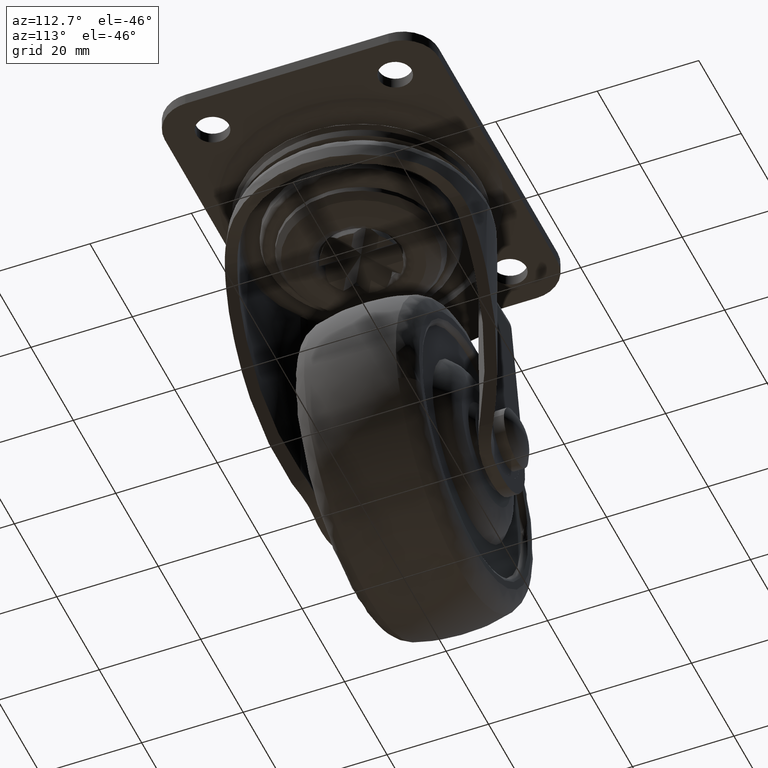
[diagram: clean part render]
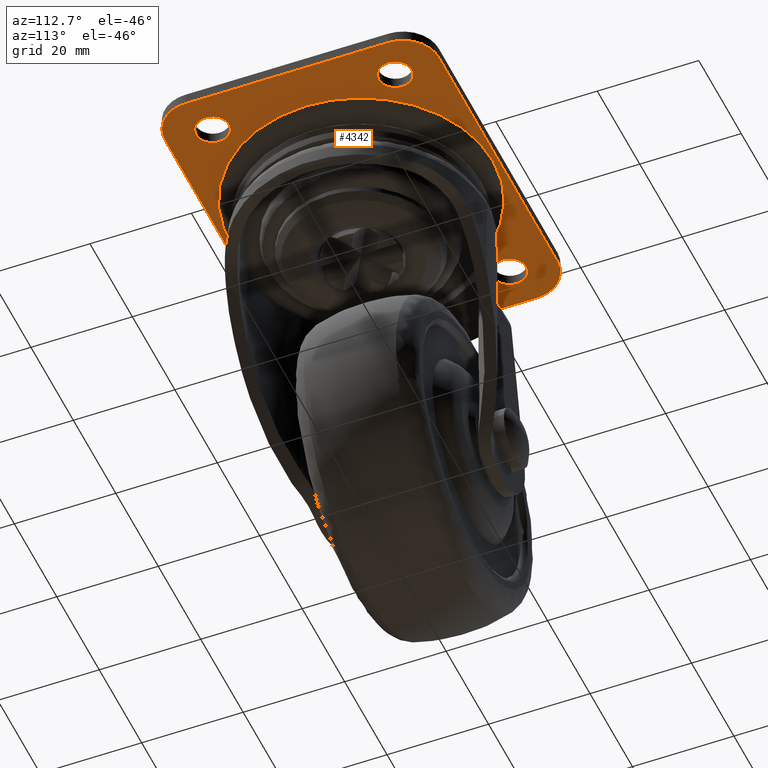
[diagram: same view with one face highlighted and labeled with its STEP entity id]
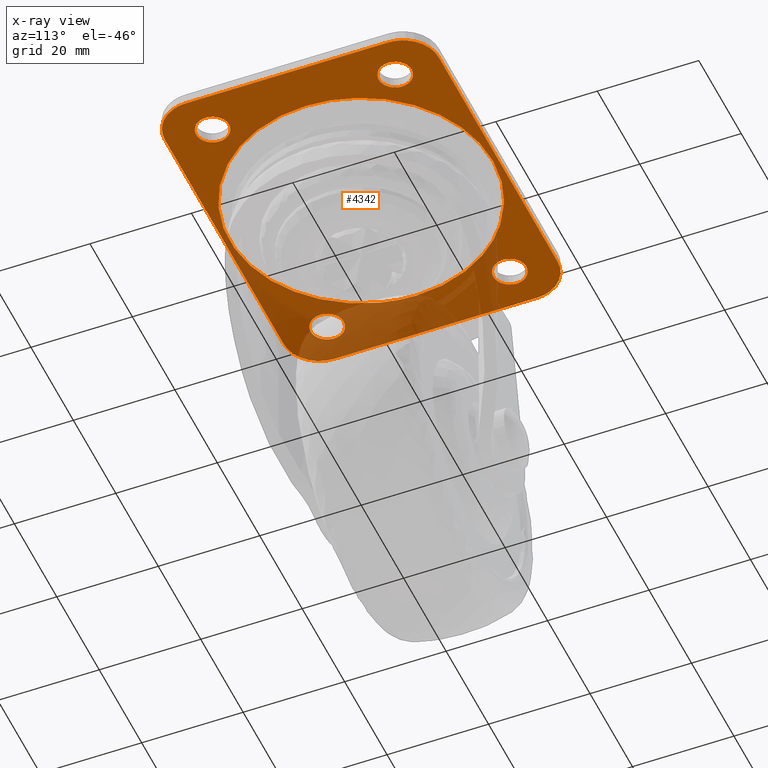
[diagram: x-ray of the same camera — body ghosted, the highlighted face saturated]
A machine part, auxiliary view. The second image highlights one B-rep face of the part: STEP entity #4342.
The next image is the same camera in x-ray: the body ghosted, the highlighted face saturated — about 33% of this face is hidden behind the body in this view.
In plain terms, the highlighted face is a freeform B-spline surface patch.
Its self-contained STEP definition (entity closure, byte-faithful):
#2541=CARTESIAN_POINT('',(-26.801592246465201,21.243938094868220,-2.300282999999960));
#2542=VERTEX_POINT('',#2541);
#2548=CARTESIAN_POINT('',(-23.750000000000000,18.0,-2.300282999999960));
#2549=VERTEX_POINT('',#2548);
#2550=CARTESIAN_POINT('',(-23.750000000000000,18.0,-2.300282999999960));
#2551=CARTESIAN_POINT('',(-23.750000000000000,21.057294717355663,-2.300282999999960));
#2552=CARTESIAN_POINT('',(-26.801592246465194,21.243938094868223,-2.300282999999960));
#2560=(BOUNDED_CURVE()B_SPLINE_CURVE(2,(#2550,#2551,#2552),.UNSPECIFIED.,.F.,.U.)B_SPLINE_CURVE_WITH_KNOTS((3,3),(0.500000000000000,0.739332962237020),.UNSPECIFIED.)CURVE()GEOMETRIC_REPRESENTATION_ITEM()RATIONAL_B_SPLINE_CURVE((1.0,0.719603993288963,0.976072041662597))REPRESENTATION_ITEM(''));
#2561=EDGE_CURVE('',#2549,#2542,#2560,.T.);
#2563=CARTESIAN_POINT('',(-27.383605848415790,14.772718395765340,-2.300282999999960));
#2564=VERTEX_POINT('',#2563);
#2565=CARTESIAN_POINT('',(-27.383605848415790,14.772718395765335,-2.300282999999961));
#2566=CARTESIAN_POINT('',(-27.192475653140839,14.749999999999998,-2.300282999999960));
#2567=CARTESIAN_POINT('',(-27.0,14.750000000000000,-2.300282999999960));
#2568=CARTESIAN_POINT('',(-23.749999999999996,14.749999999999993,-2.300282999999960));
#2569=CARTESIAN_POINT('',(-23.750000000000000,18.0,-2.300282999999960));
#2577=(BOUNDED_CURVE()B_SPLINE_CURVE(2,(#2565,#2566,#2567,#2568,#2569),.UNSPECIFIED.,.F.,.U.)B_SPLINE_CURVE_WITH_KNOTS((3,2,3),(0.229562757042442,0.250000000000000,0.500000000000000),.UNSPECIFIED.)CURVE()GEOMETRIC_REPRESENTATION_ITEM()RATIONAL_B_SPLINE_CURVE((0.956027309912766,0.976056280505953,1.0,0.707106781186547,1.0))REPRESENTATION_ITEM(''));
#2578=EDGE_CURVE('',#2564,#2549,#2577,.T.);
#2626=CARTESIAN_POINT('',(-30.250000000000000,18.0,-2.300282999999960));
#2627=VERTEX_POINT('',#2626);
#2628=CARTESIAN_POINT('',(-30.250000000000000,18.0,-2.300282999999960));
#2629=CARTESIAN_POINT('',(-30.249999999999996,15.113427913941512,-2.300282999999960));
#2630=CARTESIAN_POINT('',(-27.383605848415790,14.772718395765335,-2.300282999999961));
#2638=(BOUNDED_CURVE()B_SPLINE_CURVE(2,(#2628,#2629,#2630),.UNSPECIFIED.,.F.,.U.)B_SPLINE_CURVE_WITH_KNOTS((3,3),(0.0,0.229562757042442),.UNSPECIFIED.)CURVE()GEOMETRIC_REPRESENTATION_ITEM()RATIONAL_B_SPLINE_CURVE((1.0,0.731050500680594,0.956027309912766))REPRESENTATION_ITEM(''));
#2639=EDGE_CURVE('',#2627,#2564,#2638,.T.);
#2641=CARTESIAN_POINT('',(-26.801592246465201,21.243938094868220,-2.300282999999960));
#2642=CARTESIAN_POINT('',(-26.900703519232941,21.249999999999993,-2.300282999999959));
#2643=CARTESIAN_POINT('',(-27.0,21.250000000000000,-2.300282999999960));
#2644=CARTESIAN_POINT('',(-30.250000000000000,21.249999999999996,-2.300282999999960));
#2645=CARTESIAN_POINT('',(-30.250000000000000,18.0,-2.300282999999960));
#2653=(BOUNDED_CURVE()B_SPLINE_CURVE(2,(#2641,#2642,#2643,#2644,#2645),.UNSPECIFIED.,.F.,.U.)B_SPLINE_CURVE_WITH_KNOTS((3,2,3),(0.739332962237020,0.750000000000000,1.0),.UNSPECIFIED.)CURVE()GEOMETRIC_REPRESENTATION_ITEM()RATIONAL_B_SPLINE_CURVE((0.976072041662596,0.987502787897584,1.0,0.707106781186547,1.0))REPRESENTATION_ITEM(''));
#2654=EDGE_CURVE('',#2542,#2627,#2653,.T.);
#2731=CARTESIAN_POINT('',(-26.801592246465201,-14.756061905131780,-2.300282999999960));
#2732=VERTEX_POINT('',#2731);
#2738=CARTESIAN_POINT('',(-23.750000000000000,-18.0,-2.300282999999960));
#2739=VERTEX_POINT('',#2738);
#2740=CARTESIAN_POINT('',(-23.750000000000000,-18.0,-2.300282999999960));
#2741=CARTESIAN_POINT('',(-23.750000000000000,-14.942705282644328,-2.300282999999960));
#2742=CARTESIAN_POINT('',(-26.801592246465194,-14.756061905131780,-2.300282999999960));
#2750=(BOUNDED_CURVE()B_SPLINE_CURVE(2,(#2740,#2741,#2742),.UNSPECIFIED.,.F.,.U.)B_SPLINE_CURVE_WITH_KNOTS((3,3),(0.500000000000000,0.739332962237020),.UNSPECIFIED.)CURVE()GEOMETRIC_REPRESENTATION_ITEM()RATIONAL_B_SPLINE_CURVE((1.0,0.719603993288963,0.976072041662597))REPRESENTATION_ITEM(''));
#2751=EDGE_CURVE('',#2739,#2732,#2750,.T.);
#2753=CARTESIAN_POINT('',(-27.383605848415790,-21.227281604234658,-2.300282999999960));
#2754=VERTEX_POINT('',#2753);
#2755=CARTESIAN_POINT('',(-27.383605848415794,-21.227281604234662,-2.300282999999960));
#2756=CARTESIAN_POINT('',(-27.192475653140839,-21.249999999999993,-2.300282999999959));
#2757=CARTESIAN_POINT('',(-27.0,-21.250000000000000,-2.300282999999960));
#2758=CARTESIAN_POINT('',(-23.749999999999996,-21.249999999999996,-2.300282999999960));
#2759=CARTESIAN_POINT('',(-23.750000000000000,-18.0,-2.300282999999960));
#2767=(BOUNDED_CURVE()B_SPLINE_CURVE(2,(#2755,#2756,#2757,#2758,#2759),.UNSPECIFIED.,.F.,.U.)B_SPLINE_CURVE_WITH_KNOTS((3,2,3),(0.229562757042442,0.250000000000000,0.500000000000000),.UNSPECIFIED.)CURVE()GEOMETRIC_REPRESENTATION_ITEM()RATIONAL_B_SPLINE_CURVE((0.956027309912766,0.976056280505953,1.0,0.707106781186547,1.0))REPRESENTATION_ITEM(''));
#2768=EDGE_CURVE('',#2754,#2739,#2767,.T.);
#2816=CARTESIAN_POINT('',(-30.250000000000000,-18.0,-2.300282999999960));
#2817=VERTEX_POINT('',#2816);
#2818=CARTESIAN_POINT('',(-30.250000000000000,-18.0,-2.300282999999960));
#2819=CARTESIAN_POINT('',(-30.249999999999996,-20.886572086058479,-2.300282999999960));
#2820=CARTESIAN_POINT('',(-27.383605848415790,-21.227281604234658,-2.300282999999961));
#2828=(BOUNDED_CURVE()B_SPLINE_CURVE(2,(#2818,#2819,#2820),.UNSPECIFIED.,.F.,.U.)B_SPLINE_CURVE_WITH_KNOTS((3,3),(0.0,0.229562757042442),.UNSPECIFIED.)CURVE()GEOMETRIC_REPRESENTATION_ITEM()RATIONAL_B_SPLINE_CURVE((1.0,0.731050500680594,0.956027309912766))REPRESENTATION_ITEM(''));
#2829=EDGE_CURVE('',#2817,#2754,#2828,.T.);
#2831=CARTESIAN_POINT('',(-26.801592246465201,-14.756061905131778,-2.300282999999959));
#2832=CARTESIAN_POINT('',(-26.900703519232941,-14.750000000000004,-2.300282999999960));
#2833=CARTESIAN_POINT('',(-27.0,-14.750000000000000,-2.300282999999960));
#2834=CARTESIAN_POINT('',(-30.250000000000000,-14.749999999999993,-2.300282999999960));
#2835=CARTESIAN_POINT('',(-30.250000000000000,-18.0,-2.300282999999960));
#2843=(BOUNDED_CURVE()B_SPLINE_CURVE(2,(#2831,#2832,#2833,#2834,#2835),.UNSPECIFIED.,.F.,.U.)B_SPLINE_CURVE_WITH_KNOTS((3,2,3),(0.739332962237020,0.750000000000000,1.0),.UNSPECIFIED.)CURVE()GEOMETRIC_REPRESENTATION_ITEM()RATIONAL_B_SPLINE_CURVE((0.976072041662596,0.987502787897584,1.0,0.707106781186547,1.0))REPRESENTATION_ITEM(''));
#2844=EDGE_CURVE('',#2732,#2817,#2843,.T.);
#2921=CARTESIAN_POINT('',(27.198407753534799,21.243938094868220,-2.300282999999959));
#2922=VERTEX_POINT('',#2921);
#2928=CARTESIAN_POINT('',(30.250000000000000,18.0,-2.300282999999960));
#2929=VERTEX_POINT('',#2928);
#2930=CARTESIAN_POINT('',(30.250000000000000,18.0,-2.300282999999960));
#2931=CARTESIAN_POINT('',(30.250000000000000,21.057294717355663,-2.300282999999960));
#2932=CARTESIAN_POINT('',(27.198407753534802,21.243938094868223,-2.300282999999960));
#2940=(BOUNDED_CURVE()B_SPLINE_CURVE(2,(#2930,#2931,#2932),.UNSPECIFIED.,.F.,.U.)B_SPLINE_CURVE_WITH_KNOTS((3,3),(0.500000000000000,0.739332962237020),.UNSPECIFIED.)CURVE()GEOMETRIC_REPRESENTATION_ITEM()RATIONAL_B_SPLINE_CURVE((1.0,0.719603993288963,0.976072041662597))REPRESENTATION_ITEM(''));
#2941=EDGE_CURVE('',#2929,#2922,#2940,.T.);
#2943=CARTESIAN_POINT('',(26.616394151584199,14.772718395765340,-2.300282999999960));
#2944=VERTEX_POINT('',#2943);
#2945=CARTESIAN_POINT('',(26.616394151584203,14.772718395765343,-2.300282999999960));
#2946=CARTESIAN_POINT('',(26.807524346859157,14.749999999999996,-2.300282999999959));
#2947=CARTESIAN_POINT('',(27.0,14.750000000000000,-2.300282999999960));
#2948=CARTESIAN_POINT('',(30.250000000000000,14.749999999999993,-2.300282999999960));
#2949=CARTESIAN_POINT('',(30.250000000000000,18.0,-2.300282999999960));
#2957=(BOUNDED_CURVE()B_SPLINE_CURVE(2,(#2945,#2946,#2947,#2948,#2949),.UNSPECIFIED.,.F.,.U.)B_SPLINE_CURVE_WITH_KNOTS((3,2,3),(0.229562757042442,0.250000000000000,0.500000000000000),.UNSPECIFIED.)CURVE()GEOMETRIC_REPRESENTATION_ITEM()RATIONAL_B_SPLINE_CURVE((0.956027309912765,0.976056280505953,1.0,0.707106781186547,1.0))REPRESENTATION_ITEM(''));
#2958=EDGE_CURVE('',#2944,#2929,#2957,.T.);
#3006=CARTESIAN_POINT('',(23.750000000000000,18.0,-2.300282999999960));
#3007=VERTEX_POINT('',#3006);
#3008=CARTESIAN_POINT('',(23.750000000000000,18.0,-2.300282999999960));
#3009=CARTESIAN_POINT('',(23.750000000000004,15.113427913941527,-2.300282999999959));
#3010=CARTESIAN_POINT('',(26.616394151584206,14.772718395765335,-2.300282999999960));
#3018=(BOUNDED_CURVE()B_SPLINE_CURVE(2,(#3008,#3009,#3010),.UNSPECIFIED.,.F.,.U.)B_SPLINE_CURVE_WITH_KNOTS((3,3),(0.0,0.229562757042442),.UNSPECIFIED.)CURVE()GEOMETRIC_REPRESENTATION_ITEM()RATIONAL_B_SPLINE_CURVE((1.0,0.731050500680595,0.956027309912765))REPRESENTATION_ITEM(''));
#3019=EDGE_CURVE('',#3007,#2944,#3018,.T.);
#3021=CARTESIAN_POINT('',(27.198407753534799,21.243938094868223,-2.300282999999959));
#3022=CARTESIAN_POINT('',(27.099296480767062,21.249999999999996,-2.300282999999960));
#3023=CARTESIAN_POINT('',(27.0,21.250000000000000,-2.300282999999960));
#3024=CARTESIAN_POINT('',(23.749999999999996,21.249999999999996,-2.300282999999960));
#3025=CARTESIAN_POINT('',(23.750000000000000,18.0,-2.300282999999960));
#3033=(BOUNDED_CURVE()B_SPLINE_CURVE(2,(#3021,#3022,#3023,#3024,#3025),.UNSPECIFIED.,.F.,.U.)B_SPLINE_CURVE_WITH_KNOTS((3,2,3),(0.739332962237020,0.750000000000000,1.0),.UNSPECIFIED.)CURVE()GEOMETRIC_REPRESENTATION_ITEM()RATIONAL_B_SPLINE_CURVE((0.976072041662597,0.987502787897585,1.0,0.707106781186547,1.0))REPRESENTATION_ITEM(''));
#3034=EDGE_CURVE('',#2922,#3007,#3033,.T.);
#3111=CARTESIAN_POINT('',(27.198407753534799,-14.756061905131780,-2.300282999999959));
#3112=VERTEX_POINT('',#3111);
#3118=CARTESIAN_POINT('',(30.250000000000000,-18.0,-2.300282999999960));
#3119=VERTEX_POINT('',#3118);
#3120=CARTESIAN_POINT('',(30.250000000000000,-18.0,-2.300282999999960));
#3121=CARTESIAN_POINT('',(30.250000000000000,-14.942705282644328,-2.300282999999960));
#3122=CARTESIAN_POINT('',(27.198407753534802,-14.756061905131780,-2.300282999999960));
#3130=(BOUNDED_CURVE()B_SPLINE_CURVE(2,(#3120,#3121,#3122),.UNSPECIFIED.,.F.,.U.)B_SPLINE_CURVE_WITH_KNOTS((3,3),(0.500000000000000,0.739332962237020),.UNSPECIFIED.)CURVE()GEOMETRIC_REPRESENTATION_ITEM()RATIONAL_B_SPLINE_CURVE((1.0,0.719603993288963,0.976072041662597))REPRESENTATION_ITEM(''));
#3131=EDGE_CURVE('',#3119,#3112,#3130,.T.);
#3133=CARTESIAN_POINT('',(26.616394151584210,-21.227281604234658,-2.300282999999960));
#3134=VERTEX_POINT('',#3133);
#3135=CARTESIAN_POINT('',(26.616394151584206,-21.227281604234665,-2.300282999999961));
#3136=CARTESIAN_POINT('',(26.807524346859157,-21.250000000000000,-2.300282999999960));
#3137=CARTESIAN_POINT('',(27.0,-21.250000000000000,-2.300282999999960));
#3138=CARTESIAN_POINT('',(30.250000000000000,-21.249999999999996,-2.300282999999960));
#3139=CARTESIAN_POINT('',(30.250000000000000,-18.0,-2.300282999999960));
#3147=(BOUNDED_CURVE()B_SPLINE_CURVE(2,(#3135,#3136,#3137,#3138,#3139),.UNSPECIFIED.,.F.,.U.)B_SPLINE_CURVE_WITH_KNOTS((3,2,3),(0.229562757042442,0.250000000000000,0.500000000000000),.UNSPECIFIED.)CURVE()GEOMETRIC_REPRESENTATION_ITEM()RATIONAL_B_SPLINE_CURVE((0.956027309912767,0.976056280505954,1.0,0.707106781186547,1.0))REPRESENTATION_ITEM(''));
#3148=EDGE_CURVE('',#3134,#3119,#3147,.T.);
#3196=CARTESIAN_POINT('',(23.750000000000000,-18.0,-2.300282999999960));
#3197=VERTEX_POINT('',#3196);
#3198=CARTESIAN_POINT('',(23.750000000000000,-18.0,-2.300282999999960));
#3199=CARTESIAN_POINT('',(23.750000000000007,-20.886572086058482,-2.300282999999960));
#3200=CARTESIAN_POINT('',(26.616394151584210,-21.227281604234658,-2.300282999999960));
#3208=(BOUNDED_CURVE()B_SPLINE_CURVE(2,(#3198,#3199,#3200),.UNSPECIFIED.,.F.,.U.)B_SPLINE_CURVE_WITH_KNOTS((3,3),(0.0,0.229562757042442),.UNSPECIFIED.)CURVE()GEOMETRIC_REPRESENTATION_ITEM()RATIONAL_B_SPLINE_CURVE((1.0,0.731050500680594,0.956027309912767))REPRESENTATION_ITEM(''));
#3209=EDGE_CURVE('',#3197,#3134,#3208,.T.);
#3211=CARTESIAN_POINT('',(27.198407753534799,-14.756061905131784,-2.300282999999959));
#3212=CARTESIAN_POINT('',(27.099296480767062,-14.749999999999995,-2.300282999999960));
#3213=CARTESIAN_POINT('',(27.0,-14.750000000000000,-2.300282999999960));
#3214=CARTESIAN_POINT('',(23.749999999999996,-14.749999999999993,-2.300282999999960));
#3215=CARTESIAN_POINT('',(23.750000000000000,-18.0,-2.300282999999960));
#3223=(BOUNDED_CURVE()B_SPLINE_CURVE(2,(#3211,#3212,#3213,#3214,#3215),.UNSPECIFIED.,.F.,.U.)B_SPLINE_CURVE_WITH_KNOTS((3,2,3),(0.739332962237020,0.750000000000000,1.0),.UNSPECIFIED.)CURVE()GEOMETRIC_REPRESENTATION_ITEM()RATIONAL_B_SPLINE_CURVE((0.976072041662597,0.987502787897585,1.0,0.707106781186547,1.0))REPRESENTATION_ITEM(''));
#3224=EDGE_CURVE('',#3112,#3197,#3223,.T.);
#3869=CARTESIAN_POINT('',(21.874048456948241,14.054393793095061,-2.300283000178225));
#3870=VERTEX_POINT('',#3869);
#3884=CARTESIAN_POINT('',(25.999999630790299,0.0,-2.300283000000000));
#3885=VERTEX_POINT('',#3884);
#3886=CARTESIAN_POINT('',(21.874048456948245,14.054393793095068,-2.300283000178225));
#3887=CARTESIAN_POINT('',(25.999999630790303,7.632825048873375,-2.300283000000000));
#3888=CARTESIAN_POINT('',(25.999999630790299,0.0,-2.300283000000000));
#3896=(BOUNDED_CURVE()B_SPLINE_CURVE(2,(#3886,#3887,#3888),.UNSPECIFIED.,.F.,.U.)B_SPLINE_CURVE_WITH_KNOTS((3,3),(0.407460173955464,0.500000000000000),.UNSPECIFIED.)CURVE()GEOMETRIC_REPRESENTATION_ITEM()RATIONAL_B_SPLINE_CURVE((0.863428933516128,0.891582849925516,1.0))REPRESENTATION_ITEM(''));
#3897=EDGE_CURVE('',#3870,#3885,#3896,.T.);
#3899=CARTESIAN_POINT('',(-25.999999630790299,0.0,-2.300283000000000));
#3900=VERTEX_POINT('',#3899);
#3901=CARTESIAN_POINT('',(25.999999630790299,0.0,-2.300283000000000));
#3902=CARTESIAN_POINT('',(25.999999630790292,-25.999999630790292,-2.300282999999999));
#3903=CARTESIAN_POINT('',(0.0,-25.999999630790299,-2.300283000000000));
#3904=CARTESIAN_POINT('',(-25.999999630790292,-25.999999630790292,-2.300282999999999));
#3905=CARTESIAN_POINT('',(-25.999999630790299,0.0,-2.300283000000000));
#3913=(BOUNDED_CURVE()B_SPLINE_CURVE(2,(#3901,#3902,#3903,#3904,#3905),.UNSPECIFIED.,.F.,.U.)B_SPLINE_CURVE_WITH_KNOTS((3,2,3),(0.500000000000000,0.750000000000000,1.0),.UNSPECIFIED.)CURVE()GEOMETRIC_REPRESENTATION_ITEM()RATIONAL_B_SPLINE_CURVE((1.0,0.707106781186548,1.0,0.707106781186548,1.0))REPRESENTATION_ITEM(''));
#3914=EDGE_CURVE('',#3885,#3900,#3913,.T.);
#3916=CARTESIAN_POINT('',(-15.282416342534820,21.034441554936290,-2.300283000090454));
#3917=VERTEX_POINT('',#3916);
#3918=CARTESIAN_POINT('',(-25.999999630790299,0.0,-2.300283000000000));
#3919=CARTESIAN_POINT('',(-25.999999630790306,13.247661498702438,-2.300283000000001));
#3920=CARTESIAN_POINT('',(-15.282416342534816,21.034441554936294,-2.300283000090453));
#3928=(BOUNDED_CURVE()B_SPLINE_CURVE(2,(#3918,#3919,#3920),.UNSPECIFIED.,.F.,.U.)B_SPLINE_CURVE_WITH_KNOTS((3,3),(0.0,0.148750340999451),.UNSPECIFIED.)CURVE()GEOMETRIC_REPRESENTATION_ITEM()RATIONAL_B_SPLINE_CURVE((1.0,0.825728135300289,0.858840265006115))REPRESENTATION_ITEM(''));
#3929=EDGE_CURVE('',#3900,#3917,#3928,.T.);
#4018=CARTESIAN_POINT('',(-15.282416342534816,21.034441554936294,-2.300283000090453));
#4019=CARTESIAN_POINT('',(-8.447911982119244,25.999999630790299,-2.300283000000001));
#4020=CARTESIAN_POINT('',(0.0,25.999999630790299,-2.300283000000000));
#4021=CARTESIAN_POINT('',(14.198823229892231,25.999999630790306,-2.300283000000001));
#4022=CARTESIAN_POINT('',(21.874048456948245,14.054393793095068,-2.300283000178225));
#4030=(BOUNDED_CURVE()B_SPLINE_CURVE(2,(#4018,#4019,#4020,#4021,#4022),.UNSPECIFIED.,.F.,.U.)B_SPLINE_CURVE_WITH_KNOTS((3,2,3),(0.148750340999451,0.250000000000000,0.407460173955464),.UNSPECIFIED.)CURVE()GEOMETRIC_REPRESENTATION_ITEM()RATIONAL_B_SPLINE_CURVE((0.858840265006115,0.881378645886259,1.0,0.815523931261032,0.863428933516128))REPRESENTATION_ITEM(''));
#4031=EDGE_CURVE('',#3917,#3870,#4030,.T.);
#4217=CARTESIAN_POINT('',(-38.496499864326417,29.697299895337519,-2.300283000000000));
#4218=CARTESIAN_POINT('',(38.496501741872727,29.697299895337519,-2.300283000000000));
#4219=CARTESIAN_POINT('',(-38.496499864326417,-29.697301343730391,-2.300283000000000));
#4220=CARTESIAN_POINT('',(38.496501741872727,-29.697301343730391,-2.300283000000000));
#4221=B_SPLINE_SURFACE_WITH_KNOTS('',1,1,((#4217,#4219),(#4218,#4220)),.UNSPECIFIED.,.F.,.F.,.U.,(2,2),(2,2),(0.0,76.993001606199158),(0.0,59.394601239067910),.UNSPECIFIED.);
#4222=CARTESIAN_POINT('',(28.0,27.0,-2.300282999999960));
#4223=VERTEX_POINT('',#4222);
#4224=CARTESIAN_POINT('',(-28.0,27.0,-2.300282999999960));
#4225=VERTEX_POINT('',#4224);
#4226=CARTESIAN_POINT('',(28.0,27.0,-2.300282999999960));
#4227=CARTESIAN_POINT('',(-28.0,27.0,-2.300282999999960));
#4228=QUASI_UNIFORM_CURVE('',1,(#4226,#4227),.UNSPECIFIED.,.F.,.U.);
#4229=EDGE_CURVE('',#4223,#4225,#4228,.T.);
#4230=ORIENTED_EDGE('',*,*,#4229,.F.);
#4231=CARTESIAN_POINT('',(35.0,20.0,-2.300282999999960));
#4232=VERTEX_POINT('',#4231);
#4233=CARTESIAN_POINT('',(35.0,20.0,-2.300282999999960));
#4234=CARTESIAN_POINT('',(35.0,27.0,-2.300282999999960));
#4235=CARTESIAN_POINT('',(28.0,27.0,-2.300282999999960));
#4243=(BOUNDED_CURVE()B_SPLINE_CURVE(2,(#4233,#4234,#4235),.UNSPECIFIED.,.F.,.U.)CURVE()GEOMETRIC_REPRESENTATION_ITEM()QUASI_UNIFORM_CURVE()RATIONAL_B_SPLINE_CURVE((1.0,0.707106781186547,1.0))REPRESENTATION_ITEM(''));
#4244=EDGE_CURVE('',#4232,#4223,#4243,.T.);
#4245=ORIENTED_EDGE('',*,*,#4244,.F.);
#4246=CARTESIAN_POINT('',(35.0,-20.0,-2.300282999999960));
#4247=VERTEX_POINT('',#4246);
#4248=CARTESIAN_POINT('',(35.0,-20.0,-2.300282999999960));
#4249=CARTESIAN_POINT('',(35.0,20.0,-2.300282999999960));
#4250=QUASI_UNIFORM_CURVE('',1,(#4248,#4249),.UNSPECIFIED.,.F.,.U.);
#4251=EDGE_CURVE('',#4247,#4232,#4250,.T.);
#4252=ORIENTED_EDGE('',*,*,#4251,.F.);
#4253=CARTESIAN_POINT('',(28.0,-27.0,-2.300282999999960));
#4254=VERTEX_POINT('',#4253);
#4255=CARTESIAN_POINT('',(28.0,-27.0,-2.300282999999960));
#4256=CARTESIAN_POINT('',(35.0,-27.0,-2.300282999999960));
#4257=CARTESIAN_POINT('',(35.0,-20.0,-2.300282999999960));
#4265=(BOUNDED_CURVE()B_SPLINE_CURVE(2,(#4255,#4256,#4257),.UNSPECIFIED.,.F.,.U.)CURVE()GEOMETRIC_REPRESENTATION_ITEM()QUASI_UNIFORM_CURVE()RATIONAL_B_SPLINE_CURVE((1.0,0.707106781186547,1.0))REPRESENTATION_ITEM(''));
#4266=EDGE_CURVE('',#4254,#4247,#4265,.T.);
#4267=ORIENTED_EDGE('',*,*,#4266,.F.);
#4268=CARTESIAN_POINT('',(-28.0,-27.0,-2.300282999999960));
#4269=VERTEX_POINT('',#4268);
#4270=CARTESIAN_POINT('',(-28.0,-27.0,-2.300282999999960));
#4271=CARTESIAN_POINT('',(28.0,-27.0,-2.300282999999960));
#4272=QUASI_UNIFORM_CURVE('',1,(#4270,#4271),.UNSPECIFIED.,.F.,.U.);
#4273=EDGE_CURVE('',#4269,#4254,#4272,.T.);
#4274=ORIENTED_EDGE('',*,*,#4273,.F.);
#4275=CARTESIAN_POINT('',(-35.0,-20.0,-2.300282999999960));
#4276=VERTEX_POINT('',#4275);
#4277=CARTESIAN_POINT('',(-35.0,-20.0,-2.300282999999960));
#4278=CARTESIAN_POINT('',(-35.0,-27.0,-2.300282999999960));
#4279=CARTESIAN_POINT('',(-28.0,-27.0,-2.300282999999960));
#4287=(BOUNDED_CURVE()B_SPLINE_CURVE(2,(#4277,#4278,#4279),.UNSPECIFIED.,.F.,.U.)CURVE()GEOMETRIC_REPRESENTATION_ITEM()QUASI_UNIFORM_CURVE()RATIONAL_B_SPLINE_CURVE((1.0,0.707106781186547,1.0))REPRESENTATION_ITEM(''));
#4288=EDGE_CURVE('',#4276,#4269,#4287,.T.);
#4289=ORIENTED_EDGE('',*,*,#4288,.F.);
#4290=CARTESIAN_POINT('',(-35.0,20.0,-2.300282999999960));
#4291=VERTEX_POINT('',#4290);
#4292=CARTESIAN_POINT('',(-35.0,20.0,-2.300282999999960));
#4293=CARTESIAN_POINT('',(-35.0,-20.0,-2.300282999999960));
#4294=QUASI_UNIFORM_CURVE('',1,(#4292,#4293),.UNSPECIFIED.,.F.,.U.);
#4295=EDGE_CURVE('',#4291,#4276,#4294,.T.);
#4296=ORIENTED_EDGE('',*,*,#4295,.F.);
#4297=CARTESIAN_POINT('',(-28.0,27.0,-2.300282999999960));
#4298=CARTESIAN_POINT('',(-35.0,27.0,-2.300282999999960));
#4299=CARTESIAN_POINT('',(-35.0,20.0,-2.300282999999960));
#4307=(BOUNDED_CURVE()B_SPLINE_CURVE(2,(#4297,#4298,#4299),.UNSPECIFIED.,.F.,.U.)CURVE()GEOMETRIC_REPRESENTATION_ITEM()QUASI_UNIFORM_CURVE()RATIONAL_B_SPLINE_CURVE((1.0,0.707106781186547,1.0))REPRESENTATION_ITEM(''));
#4308=EDGE_CURVE('',#4225,#4291,#4307,.T.);
#4309=ORIENTED_EDGE('',*,*,#4308,.F.);
#4310=EDGE_LOOP('',(#4230,#4245,#4252,#4267,#4274,#4289,#4296,#4309));
#4311=FACE_OUTER_BOUND('',#4310,.T.);
#4312=ORIENTED_EDGE('',*,*,#3914,.F.);
#4313=ORIENTED_EDGE('',*,*,#3897,.F.);
#4314=ORIENTED_EDGE('',*,*,#4031,.F.);
#4315=ORIENTED_EDGE('',*,*,#3929,.F.);
#4316=EDGE_LOOP('',(#4312,#4313,#4314,#4315));
#4317=FACE_BOUND('',#4316,.T.);
#4318=ORIENTED_EDGE('',*,*,#3131,.T.);
#4319=ORIENTED_EDGE('',*,*,#3224,.T.);
#4320=ORIENTED_EDGE('',*,*,#3209,.T.);
#4321=ORIENTED_EDGE('',*,*,#3148,.T.);
#4322=EDGE_LOOP('',(#4318,#4319,#4320,#4321));
#4323=FACE_BOUND('',#4322,.T.);
#4324=ORIENTED_EDGE('',*,*,#2941,.T.);
#4325=ORIENTED_EDGE('',*,*,#3034,.T.);
#4326=ORIENTED_EDGE('',*,*,#3019,.T.);
#4327=ORIENTED_EDGE('',*,*,#2958,.T.);
#4328=EDGE_LOOP('',(#4324,#4325,#4326,#4327));
#4329=FACE_BOUND('',#4328,.T.);
#4330=ORIENTED_EDGE('',*,*,#2751,.T.);
#4331=ORIENTED_EDGE('',*,*,#2844,.T.);
#4332=ORIENTED_EDGE('',*,*,#2829,.T.);
#4333=ORIENTED_EDGE('',*,*,#2768,.T.);
#4334=EDGE_LOOP('',(#4330,#4331,#4332,#4333));
#4335=FACE_BOUND('',#4334,.T.);
#4336=ORIENTED_EDGE('',*,*,#2561,.T.);
#4337=ORIENTED_EDGE('',*,*,#2654,.T.);
#4338=ORIENTED_EDGE('',*,*,#2639,.T.);
#4339=ORIENTED_EDGE('',*,*,#2578,.T.);
#4340=EDGE_LOOP('',(#4336,#4337,#4338,#4339));
#4341=FACE_BOUND('',#4340,.T.);
#4342=ADVANCED_FACE('',(#4311,#4317,#4323,#4329,#4335,#4341),#4221,.T.);